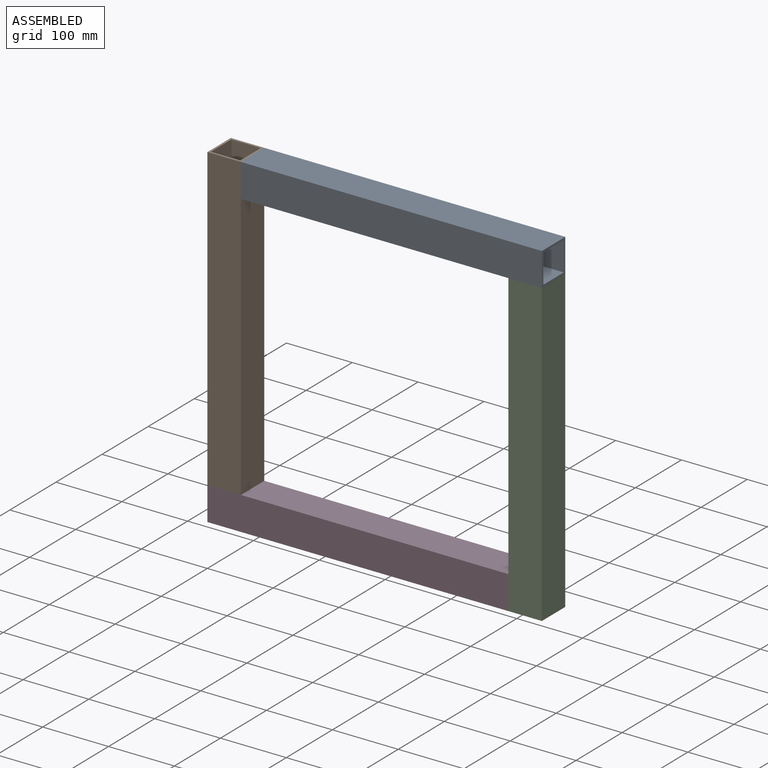
[diagram: assembled view]
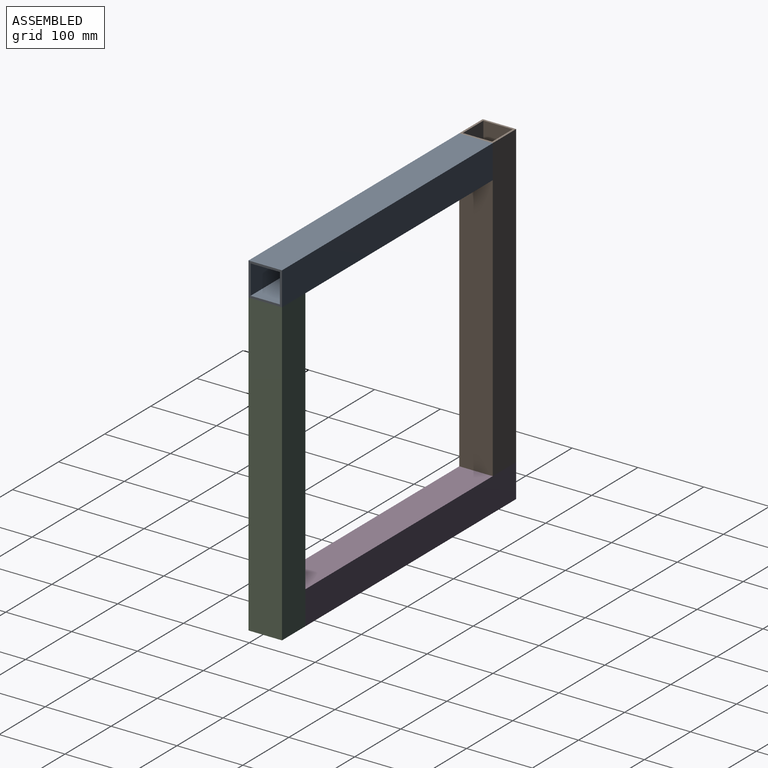
[diagram: assembled view, second angle]
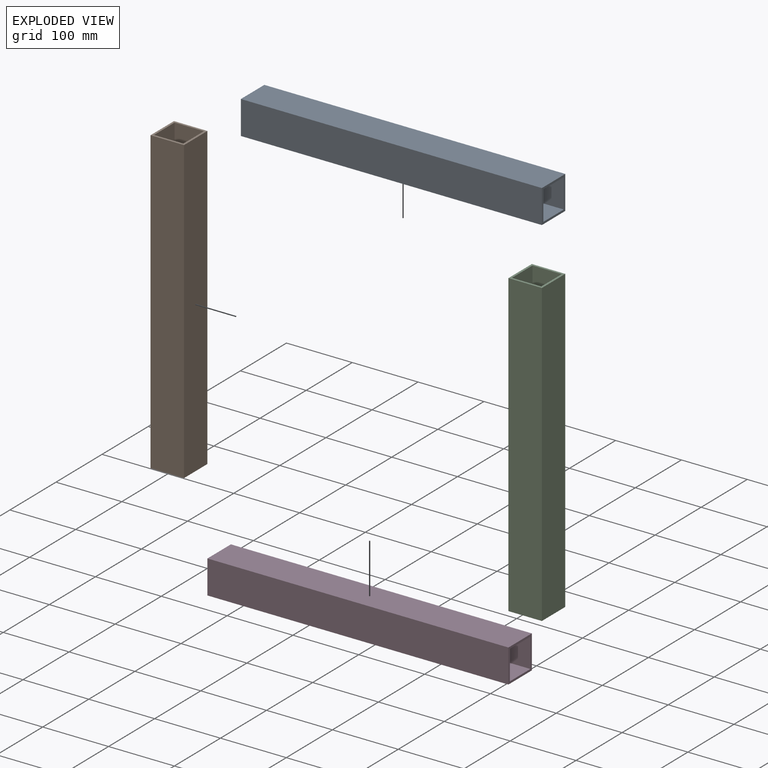
[diagram: exploded view]
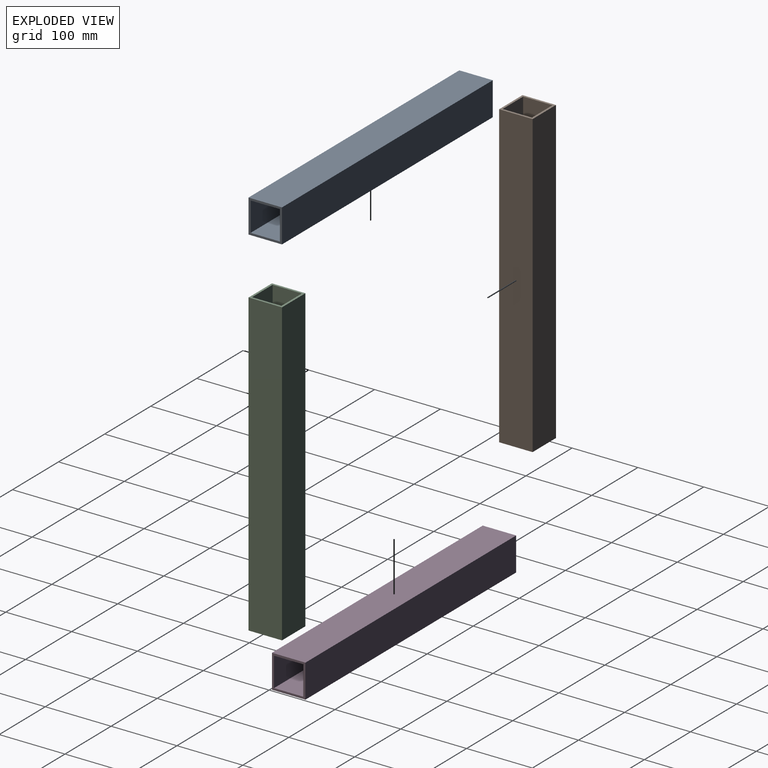
[diagram: exploded view, second angle]
ASSEMBLY  parts=4 mates=3
PART A: 10 faces, bbox 50.8x50.8x457.2 mm
  f0: plane 457.2x50.8mm, normal (0,1,0), area 23225.8mm2, adj f1,f7,f8,f9
  f1: plane 457.2x50.8mm, normal (-1,0,0), area 23225.8mm2, adj f0,f2,f8,f9
  f2: plane 457.2x50.8mm, normal (0,-1,0), area 23225.8mm2, adj f1,f7,f8,f9
  f3: plane 457.2x44.45mm, normal (0,1,0), area 20322.5mm2, adj f4,f6,f8,f9
  f4: plane 457.2x44.45mm, normal (1,0,0), area 20322.5mm2, adj f3,f5,f8,f9
  f5: plane 457.2x44.45mm, normal (0,-1,0), area 20322.5mm2, adj f4,f6,f8,f9
  f6: plane 457.2x44.45mm, normal (-1,0,0), area 20322.5mm2, adj f3,f5,f8,f9
  f7: plane 457.2x50.8mm, normal (1,0,0), area 23225.8mm2, adj f0,f2,f8,f9
  f8: plane 50.8x50.8mm, normal (0,0,1), area 604.8mm2, adj f0,f1,f2,f3,f4,f5,f6,f7
  f9: plane 50.8x50.8mm, normal (0,0,-1), area 604.8mm2, adj f0,f1,f2,f3,f4,f5,f6,f7
PART B: same geometry as A
PART C: same geometry as A
PART D: same geometry as A
PLACE A rot(axis=(-0.58,-0.58,0.58),120deg) t=(-232.88,-3.76,350.63)mm
PLACE B rot(axis=(0,1,0),0deg) t=(-660.44,-19.94,-42.32)mm
PLACE C t=(-203.24,-19.94,-93.12)mm
PLACE D rot(axis=(0,-1,0),90deg) t=(-283.68,-19.94,-12.68)mm
MATE fastened D.f7 <-> B.f9  axis (0,0,1) through (-740.88,-58.79,-42.32)mm
MATE fastened A.f9 <-> C.f7  axis (1,0,0) through (-232.88,-33.39,364.08)mm
MATE fastened B.f7 <-> A.f8  axis (1,0,0) through (-690.08,-58.79,414.88)mm
